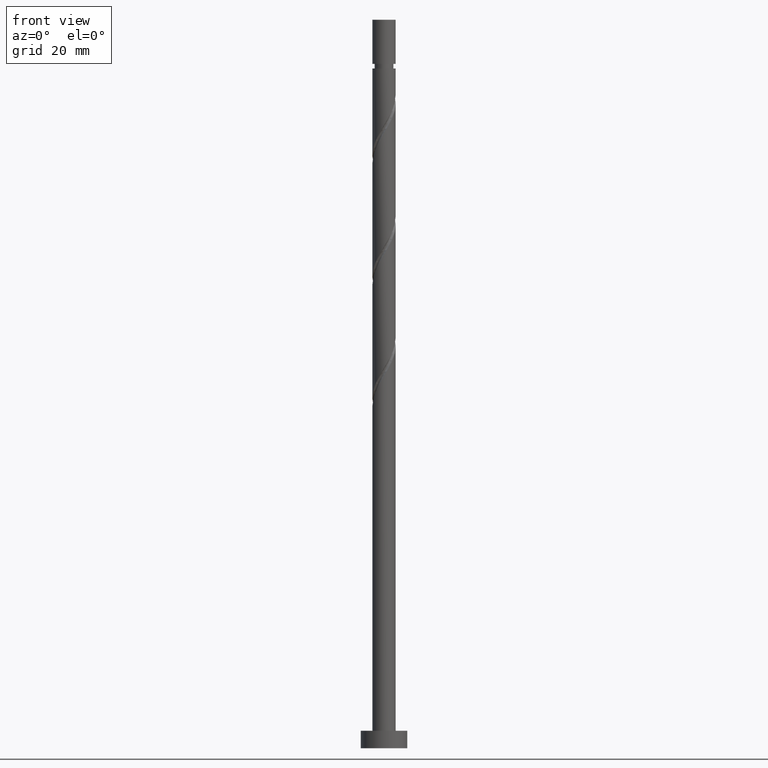
[diagram: clean part render]
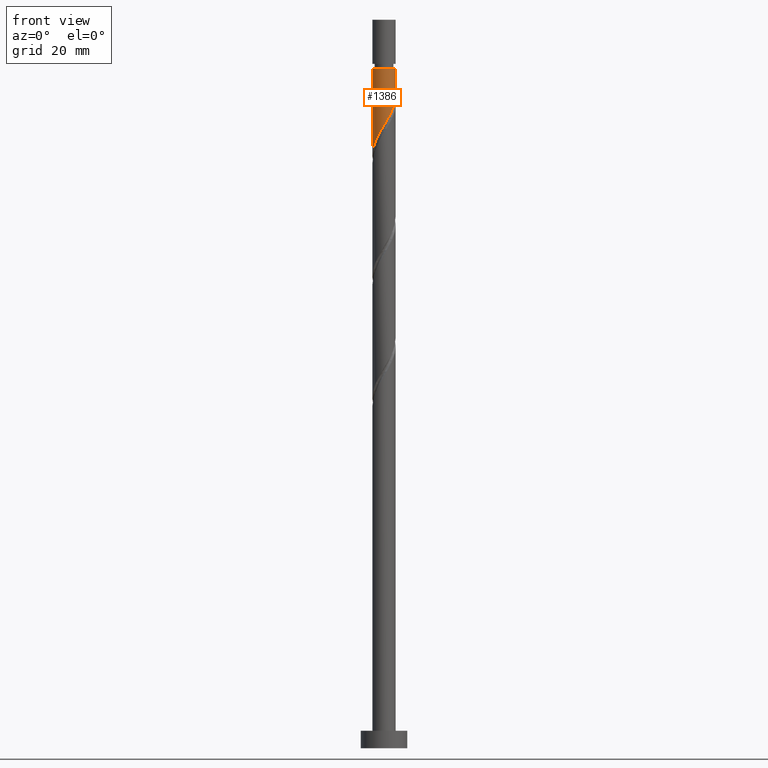
[diagram: same view with one face highlighted and labeled with its STEP entity id]
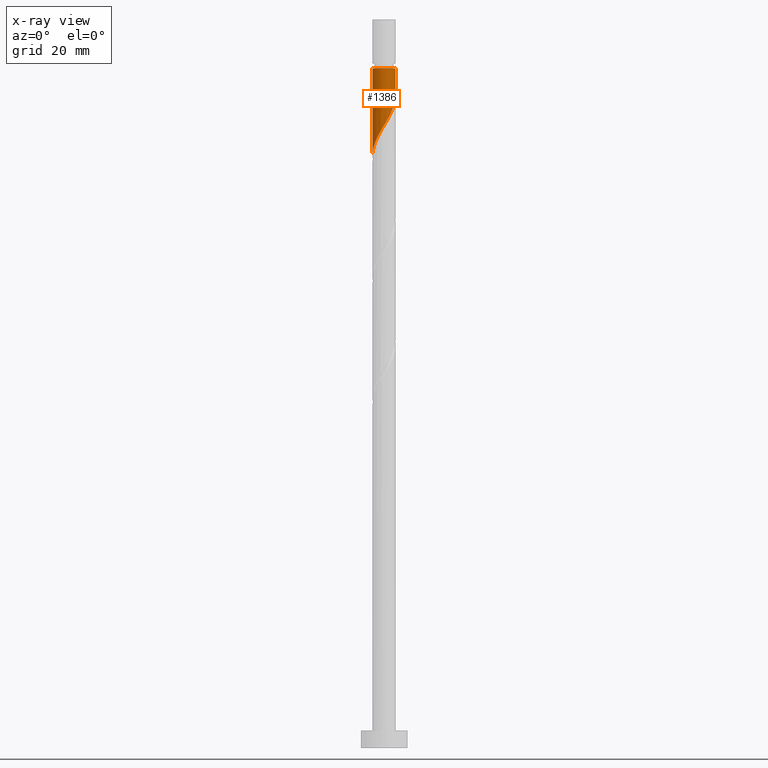
[diagram: x-ray of the same camera — body ghosted, the highlighted face saturated]
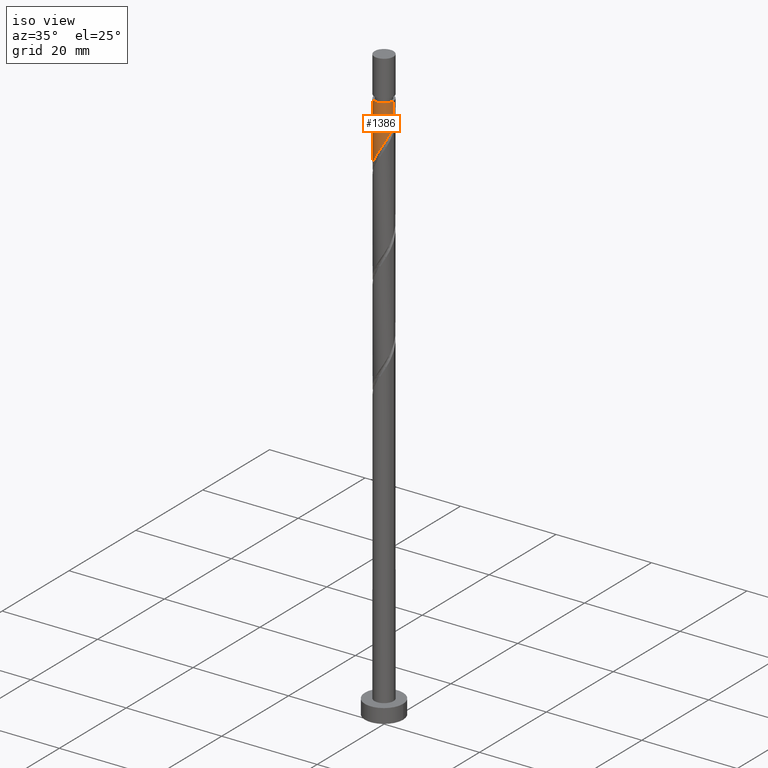
[diagram: same view with one face highlighted and labeled with its STEP entity id]
A machine part, front view. The second image highlights one B-rep face of the part: STEP entity #1386.
The next image is the same camera in x-ray: the body ghosted, the highlighted face saturated — about 0% of this face is hidden behind the body in this view.
A second angle (iso view) of the same face is appended — the face is thin or edge-on in the first view.
In plain terms, the highlighted cylindrical surface (edge-blend (fillet) strip) has radius 2 mm, axis along (-0, -0, -1).
Its self-contained STEP definition (entity closure, byte-faithful):
#23 = VECTOR ( 'NONE', #1554, 1000.000000000000000 ) ;
#63 = CARTESIAN_POINT ( 'NONE',  ( -0.7084284778787394155, -1.896963788657568539, 105.7005344228996222 ) ) ;
#77 = CARTESIAN_POINT ( 'NONE',  ( 1.999999999999998224, 2.449293598294704935E-16, 116.6380344228996222 ) ) ;
#132 = EDGE_CURVE ( 'NONE', #169, #741, #822, .T. ) ;
#169 = VERTEX_POINT ( 'NONE', #1318 ) ;
#198 = CARTESIAN_POINT ( 'NONE',  ( -1.259949568624706862, -1.585203333415016402, 104.6588677562329508 ) ) ;
#206 = CARTESIAN_POINT ( 'NONE',  ( 1.351737732275874571, -1.474043792816779552, 109.3463677562329508 ) ) ;
#224 =( BOUNDED_CURVE ( )  B_SPLINE_CURVE ( 2, ( #781, #1394, #1518, #1411, #932, #904, #206, #1294, #686, #813, #1051, #692, #1160, #63, #552, #198, #299, #663, #559, #439, #795, #1531, #1279 ),
 .UNSPECIFIED., .F., .T. ) 
 B_SPLINE_CURVE_WITH_KNOTS ( ( 3, 2, 2, 2, 2, 2, 2, 2, 2, 2, 2, 3 ),
 ( 0.3045322023138551382, 0.3125000000000000000, 0.3250000000000000111, 0.3375000000000000222, 0.3499999999999999778, 0.3624999999999999889, 0.3750000000000000000, 0.3875000000000000111, 0.4000000000000000222, 0.4124999999999999778, 0.4249999999999999889, 0.4295322023138553047 ),
 .UNSPECIFIED. ) 
 CURVE ( )  GEOMETRIC_REPRESENTATION_ITEM ( )  RATIONAL_B_SPLINE_CURVE ( ( 0.9039174447099351806, 0.9019565955404644786, 0.9090909090909128354, 0.8978984914501290104, 0.9090909090909128354, 0.8978984914501290104, 0.9090909090909128354, 0.8978984914501290104, 0.9090909090909128354, 0.8978984914501290104, 0.9090909090909128354, 0.8978984914501290104, 0.9090909090909128354, 0.8978984914501290104, 0.9090909090909128354, 0.8978984914501290104, 0.9090909090909128354, 0.8978984914501290104, 0.9090909090909128354, 0.8978984914501290104, 0.9090909090909128354, 0.9050328050005771452, 0.9039174447099351806 ) ) 
 REPRESENTATION_ITEM ( '' )  );
#289 = DIRECTION ( 'NONE',  ( -1.000000000000000000, 0.000000000000000000, 0.000000000000000000 ) ) ;
#297 = CARTESIAN_POINT ( 'NONE',  ( -2.000000000000000000, -1.409351661621345435E-15, 101.6778368643698798 ) ) ;
#299 = CARTESIAN_POINT ( 'NONE',  ( -1.474043792816779552, -1.351737732275874571, 104.1380344228996080 ) ) ;
#345 = AXIS2_PLACEMENT_3D ( 'NONE', #580, #701, #856 ) ;
#369 = CYLINDRICAL_SURFACE ( 'NONE', #345, 2.000000000000000000 ) ;
#439 = CARTESIAN_POINT ( 'NONE',  ( -1.951079754338987282, -0.5418766612026981733, 102.5755344228995938 ) ) ;
#457 = VERTEX_POINT ( 'NONE', #771 ) ;
#552 = CARTESIAN_POINT ( 'NONE',  ( -0.9841890232517231940, -1.741083561036292915, 105.1797010895662510 ) ) ;
#559 = CARTESIAN_POINT ( 'NONE',  ( -1.819608885673918985, -0.8300743961697152340, 103.0963677562329366 ) ) ;
#577 = VECTOR ( 'NONE', #1183, 1000.000000000000000 ) ;
#580 = CARTESIAN_POINT ( 'NONE',  ( 0.000000000000000000, 0.000000000000000000, 125.0000000000000000 ) ) ;
#663 = CARTESIAN_POINT ( 'NONE',  ( -1.688138017008851577, -1.118272131136731407, 103.6172010895662794 ) ) ;
#686 = CARTESIAN_POINT ( 'NONE',  ( 0.8300743961697152340, -1.819608885673918985, 108.3047010895662652 ) ) ;
#692 = CARTESIAN_POINT ( 'NONE',  ( -0.08756147180655729501, -2.023036211342430946, 106.7422010895662652 ) ) ;
#701 = DIRECTION ( 'NONE',  ( -0.000000000000000000, -0.000000000000000000, -1.000000000000000000 ) ) ;
#714 = ORIENTED_EDGE ( 'NONE', *, *, #1178, .T. ) ;
#741 = VERTEX_POINT ( 'NONE', #297 ) ;
#771 = CARTESIAN_POINT ( 'NONE',  ( 2.000000000000000000, 1.154468914306846658E-15, 112.0945035310365796 ) ) ;
#781 = CARTESIAN_POINT ( 'NONE',  ( 2.000000000000000000, 1.154468914306846658E-15, 112.0945035310365796 ) ) ;
#795 = CARTESIAN_POINT ( 'NONE',  ( -1.987057982840708892, -0.2271575946980706195, 102.0547010895662652 ) ) ;
#813 = CARTESIAN_POINT ( 'NONE',  ( 0.5418766612026980622, -1.951079754338987282, 107.7838677562329366 ) ) ;
#822 = LINE ( 'NONE', #965, #23 ) ;
#843 = LINE ( 'NONE', #963, #577 ) ;
#856 = DIRECTION ( 'NONE',  ( -1.000000000000000000, 0.000000000000000000, 0.000000000000000000 ) ) ;
#872 = DIRECTION ( 'NONE',  ( -0.000000000000000000, -0.000000000000000000, -1.000000000000000000 ) ) ;
#904 = CARTESIAN_POINT ( 'NONE',  ( 1.585203333415016402, -1.259949568624706862, 109.8672010895662936 ) ) ;
#907 = AXIS2_PLACEMENT_3D ( 'NONE', #1249, #872, #289 ) ;
#912 = EDGE_CURVE ( 'NONE', #1343, #457, #843, .T. ) ;
#932 = CARTESIAN_POINT ( 'NONE',  ( 1.741083561036292915, -0.9841890232517234161, 110.3880344228995938 ) ) ;
#963 = CARTESIAN_POINT ( 'NONE',  ( 2.000000000000000000, 2.449293598294705921E-16, 125.0000000000000000 ) ) ;
#965 = CARTESIAN_POINT ( 'NONE',  ( -2.000000000000000000, 0.000000000000000000, 125.0000000000000000 ) ) ;
#1023 = ORIENTED_EDGE ( 'NONE', *, *, #1215, .F. ) ;
#1051 = CARTESIAN_POINT ( 'NONE',  ( 0.2271575946980705085, -1.987057982840708892, 107.2630344228996080 ) ) ;
#1095 = ORIENTED_EDGE ( 'NONE', *, *, #132, .T. ) ;
#1160 = CARTESIAN_POINT ( 'NONE',  ( -0.3979949748426483969, -1.959999999999999964, 106.2213677562329366 ) ) ;
#1178 = EDGE_CURVE ( 'NONE', #1343, #169, #1329, .T. ) ;
#1183 = DIRECTION ( 'NONE',  ( -0.000000000000000000, -0.000000000000000000, -1.000000000000000000 ) ) ;
#1215 = EDGE_CURVE ( 'NONE', #457, #741, #224, .T. ) ;
#1249 = CARTESIAN_POINT ( 'NONE',  ( 0.000000000000000000, 0.000000000000000000, 116.6380344228996222 ) ) ;
#1279 = CARTESIAN_POINT ( 'NONE',  ( -2.000000000000000000, -1.409351661621345435E-15, 101.6778368643698798 ) ) ;
#1294 = CARTESIAN_POINT ( 'NONE',  ( 1.118272131136731407, -1.688138017008851577, 108.8255344228996080 ) ) ;
#1318 = CARTESIAN_POINT ( 'NONE',  ( -1.999999999999998224, 0.000000000000000000, 116.6380344228996222 ) ) ;
#1329 = CIRCLE ( 'NONE', #907, 1.999999999999998224 ) ;
#1343 = VERTEX_POINT ( 'NONE', #77 ) ;
#1350 = EDGE_LOOP ( 'NONE', ( #1471, #714, #1095, #1023 ) ) ;
#1386 = ADVANCED_FACE ( 'NONE', ( #1454 ), #369, .T. ) ;
#1394 = CARTESIAN_POINT ( 'NONE',  ( 2.000000000000000444, -0.2010075630518421141, 111.7601989556287236 ) ) ;
#1411 = CARTESIAN_POINT ( 'NONE',  ( 1.896963788657568539, -0.7084284778787395265, 110.9088677562329366 ) ) ;
#1454 = FACE_OUTER_BOUND ( 'NONE', #1350, .T. ) ;
#1471 = ORIENTED_EDGE ( 'NONE', *, *, #912, .F. ) ;
#1518 = CARTESIAN_POINT ( 'NONE',  ( 1.959999999999999964, -0.3979949748426484524, 111.4297010895662794 ) ) ;
#1531 = CARTESIAN_POINT ( 'NONE',  ( -2.000000000000000444, -0.1139474748928621800, 101.8673479535771378 ) ) ;
#1554 = DIRECTION ( 'NONE',  ( -0.000000000000000000, -0.000000000000000000, -1.000000000000000000 ) ) ;